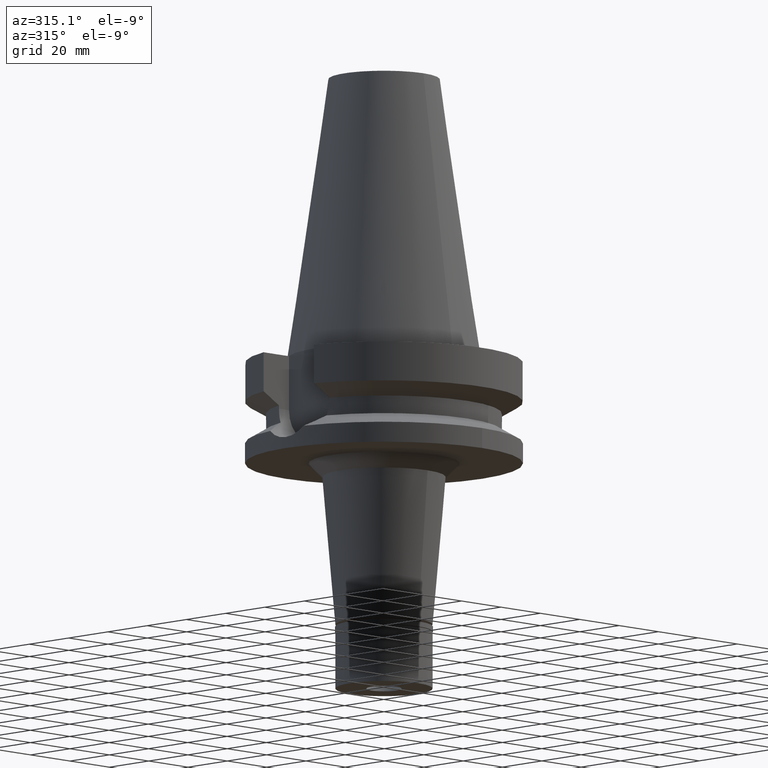
[diagram: clean part render]
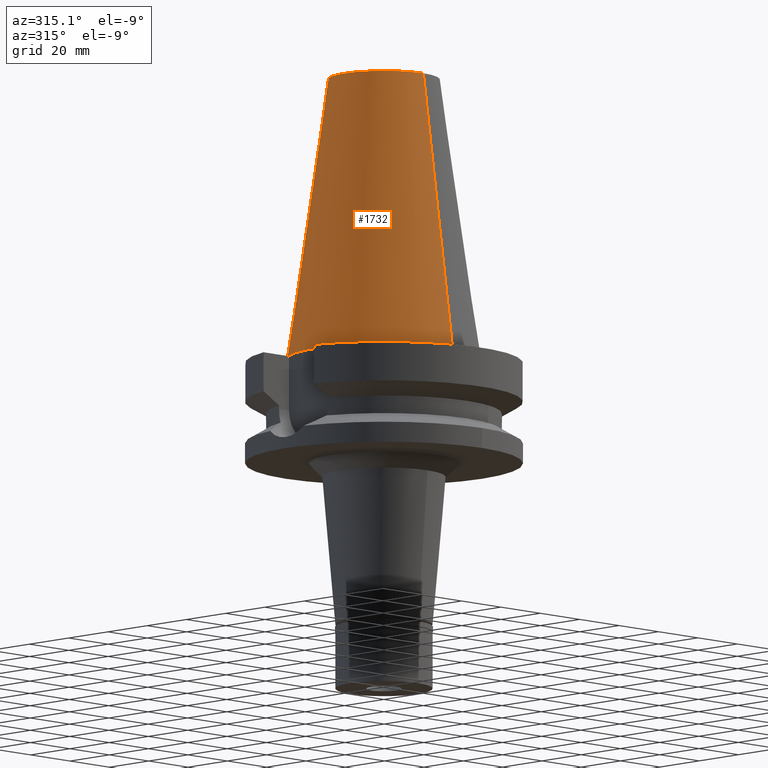
[diagram: same view with one face highlighted and labeled with its STEP entity id]
A machine part, auxiliary view. The second image highlights one B-rep face of the part: STEP entity #1732.
In plain terms, the highlighted conical surface has half-angle 8.297 deg.
Its self-contained STEP definition (entity closure, byte-faithful):
#50 = VERTEX_POINT ( 'NONE', #2993 ) ;
#97 = EDGE_CURVE ( 'NONE', #1173, #50, #1062, .T. ) ;
#180 = DIRECTION ( 'NONE',  ( 0.0000000000000000000, -1.000000000000000000, 0.0000000000000000000 ) ) ;
#286 = CARTESIAN_POINT ( 'NONE',  ( 0.0000000000000000000, -20.07942971896000017, 101.7999999999999972 ) ) ;
#415 = DIRECTION ( 'NONE',  ( 0.0000000000000000000, -0.1443043893538948075, -0.9895333461855641000 ) ) ;
#428 = CIRCLE ( 'NONE', #2210, 34.92499999999999716 ) ;
#445 = ORIENTED_EDGE ( 'NONE', *, *, #3121, .T. ) ;
#476 = CARTESIAN_POINT ( 'NONE',  ( 0.0000000000000000000, -20.07942971896000017, 101.7999999999999972 ) ) ;
#527 = CONICAL_SURFACE ( 'NONE', #1352, 27.50221485948000222, 0.1448099680379422438 ) ;
#698 = DIRECTION ( 'NONE',  ( 0.0000000000000000000, 0.0000000000000000000, -1.000000000000000000 ) ) ;
#1062 = LINE ( 'NONE', #2033, #2510 ) ;
#1173 = VERTEX_POINT ( 'NONE', #2836 ) ;
#1352 = AXIS2_PLACEMENT_3D ( 'NONE', #2561, #1786, #2011 ) ;
#1415 = EDGE_CURVE ( 'NONE', #2420, #50, #428, .T. ) ;
#1458 = LINE ( 'NONE', #476, #1603 ) ;
#1526 = ORIENTED_EDGE ( 'NONE', *, *, #2583, .F. ) ;
#1537 = FACE_OUTER_BOUND ( 'NONE', #2098, .T. ) ;
#1603 = VECTOR ( 'NONE', #415, 1000.000000000000114 ) ;
#1732 = ADVANCED_FACE ( 'NONE', ( #1537 ), #527, .T. ) ;
#1786 = DIRECTION ( 'NONE',  ( 0.0000000000000000000, 0.0000000000000000000, -1.000000000000000000 ) ) ;
#2011 = DIRECTION ( 'NONE',  ( 0.0000000000000000000, -1.000000000000000000, 0.0000000000000000000 ) ) ;
#2033 = CARTESIAN_POINT ( 'NONE',  ( 0.0000000000000000000, 20.07942971896000017, 101.7999999999999972 ) ) ;
#2098 = EDGE_LOOP ( 'NONE', ( #2170, #1526, #445, #2706 ) ) ;
#2130 = CARTESIAN_POINT ( 'NONE',  ( 0.0000000000000000000, -34.92499999999999716, 4.973799150321000185E-13 ) ) ;
#2170 = ORIENTED_EDGE ( 'NONE', *, *, #1415, .F. ) ;
#2210 = AXIS2_PLACEMENT_3D ( 'NONE', #2602, #2356, #180 ) ;
#2356 = DIRECTION ( 'NONE',  ( 0.0000000000000000000, 0.0000000000000000000, -1.000000000000000000 ) ) ;
#2395 = DIRECTION ( 'NONE',  ( 0.0000000000000000000, -1.000000000000000000, 0.0000000000000000000 ) ) ;
#2420 = VERTEX_POINT ( 'NONE', #2130 ) ;
#2500 = AXIS2_PLACEMENT_3D ( 'NONE', #3156, #698, #2395 ) ;
#2510 = VECTOR ( 'NONE', #3041, 1000.000000000000114 ) ;
#2561 = CARTESIAN_POINT ( 'NONE',  ( 0.0000000000000000000, 1.847992019912999597E-14, 50.89999999999999858 ) ) ;
#2583 = EDGE_CURVE ( 'NONE', #2652, #2420, #1458, .T. ) ;
#2602 = CARTESIAN_POINT ( 'NONE',  ( 0.0000000000000000000, 1.847992019912999597E-14, 3.979039320256999774E-13 ) ) ;
#2652 = VERTEX_POINT ( 'NONE', #286 ) ;
#2706 = ORIENTED_EDGE ( 'NONE', *, *, #97, .T. ) ;
#2836 = CARTESIAN_POINT ( 'NONE',  ( 0.0000000000000000000, 20.07942971896000017, 101.7999999999999972 ) ) ;
#2993 = CARTESIAN_POINT ( 'NONE',  ( 0.0000000000000000000, 34.92499999999999716, 4.973799150321000185E-13 ) ) ;
#3041 = DIRECTION ( 'NONE',  ( 0.0000000000000000000, 0.1443043893538948075, -0.9895333461855641000 ) ) ;
#3080 = CIRCLE ( 'NONE', #2500, 20.07942971896000017 ) ;
#3121 = EDGE_CURVE ( 'NONE', #2652, #1173, #3080, .T. ) ;
#3156 = CARTESIAN_POINT ( 'NONE',  ( 0.0000000000000000000, 1.847992019912999597E-14, 101.7999999999999972 ) ) ;